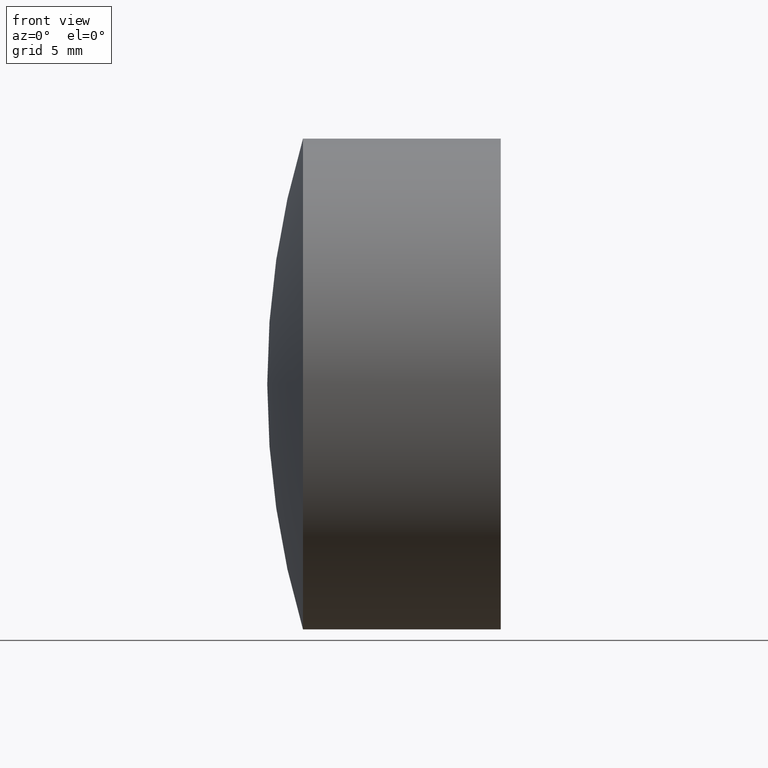
[diagram: clean part render]
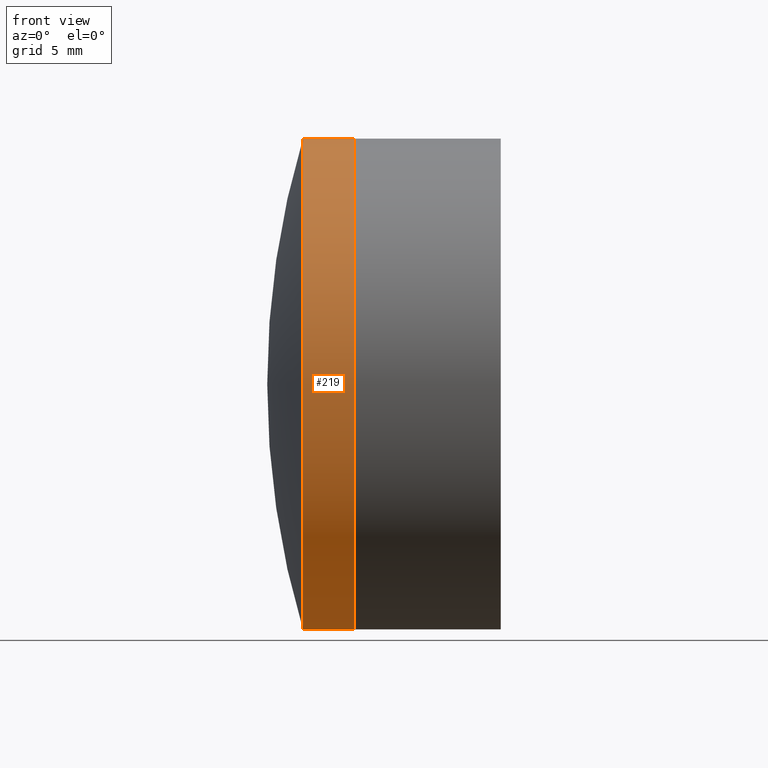
[diagram: same view with one face highlighted and labeled with its STEP entity id]
A machine part, front view. The second image highlights one B-rep face of the part: STEP entity #219.
In plain terms, the highlighted cylindrical surface (partial cylindrical patch) has radius 12.7 mm, axis along (-1, -0, -0).
Its self-contained STEP definition (entity closure, byte-faithful):
#13 = DIRECTION ( 'NONE',  ( -1.000000000000000000, -0.0000000000000000000, -0.0000000000000000000 ) ) ;
#23 = CARTESIAN_POINT ( 'NONE',  ( 313.5157627605192400, -1.555301434917138800E-015, 12.70000000000000600 ) ) ;
#25 = EDGE_CURVE ( 'NONE', #211, #70, #344, .T. ) ;
#26 = CIRCLE ( 'NONE', #294, 12.70000000000000600 ) ;
#27 = ORIENTED_EDGE ( 'NONE', *, *, #183, .T. ) ;
#28 = CARTESIAN_POINT ( 'NONE',  ( 124.5233095260452400, 0.0000000000000000000, 12.70000000000000600 ) ) ;
#35 = DIRECTION ( 'NONE',  ( -1.000000000000000000, -0.0000000000000000000, -0.0000000000000000000 ) ) ;
#64 = VERTEX_POINT ( 'NONE', #286 ) ;
#65 = DIRECTION ( 'NONE',  ( 0.0000000000000000000, 0.0000000000000000000, 1.000000000000000000 ) ) ;
#66 = CARTESIAN_POINT ( 'NONE',  ( 316.1869586626397700, 0.0000000000000000000, 12.70000000000000600 ) ) ;
#68 = DIRECTION ( 'NONE',  ( -1.000000000000000000, -0.0000000000000000000, -0.0000000000000000000 ) ) ;
#70 = VERTEX_POINT ( 'NONE', #23 ) ;
#75 = VERTEX_POINT ( 'NONE', #152 ) ;
#78 = EDGE_CURVE ( 'NONE', #75, #70, #26, .T. ) ;
#93 = ORIENTED_EDGE ( 'NONE', *, *, #25, .T. ) ;
#112 = DIRECTION ( 'NONE',  ( 0.0000000000000000000, 0.0000000000000000000, 1.000000000000000000 ) ) ;
#125 = ORIENTED_EDGE ( 'NONE', *, *, #78, .F. ) ;
#152 = CARTESIAN_POINT ( 'NONE',  ( 313.5157627605192400, 0.0000000000000000000, -12.69999999999999900 ) ) ;
#161 = ORIENTED_EDGE ( 'NONE', *, *, #233, .F. ) ;
#164 = CARTESIAN_POINT ( 'NONE',  ( 313.5157627605192400, 0.0000000000000000000, 0.0000000000000000000 ) ) ;
#166 = CARTESIAN_POINT ( 'NONE',  ( 316.1869586626397700, 0.0000000000000000000, 0.0000000000000000000 ) ) ;
#182 = DIRECTION ( 'NONE',  ( -1.000000000000000000, -0.0000000000000000000, -0.0000000000000000000 ) ) ;
#183 = EDGE_CURVE ( 'NONE', #64, #211, #205, .T. ) ;
#191 = DIRECTION ( 'NONE',  ( 0.0000000000000000000, 0.0000000000000000000, 1.000000000000000000 ) ) ;
#205 = CIRCLE ( 'NONE', #283, 12.70000000000000600 ) ;
#211 = VERTEX_POINT ( 'NONE', #66 ) ;
#218 = CARTESIAN_POINT ( 'NONE',  ( 124.5233095260452400, 0.0000000000000000000, 0.0000000000000000000 ) ) ;
#219 = ADVANCED_FACE ( 'NONE', ( #270 ), #314, .T. ) ;
#233 = EDGE_CURVE ( 'NONE', #64, #75, #260, .T. ) ;
#247 = DIRECTION ( 'NONE',  ( -1.000000000000000000, -0.0000000000000000000, -0.0000000000000000000 ) ) ;
#248 = CARTESIAN_POINT ( 'NONE',  ( 124.5233095260452400, 1.555301434917139200E-015, -12.70000000000000600 ) ) ;
#260 = LINE ( 'NONE', #248, #305 ) ;
#270 = FACE_OUTER_BOUND ( 'NONE', #275, .T. ) ;
#275 = EDGE_LOOP ( 'NONE', ( #161, #27, #93, #125 ) ) ;
#277 = AXIS2_PLACEMENT_3D ( 'NONE', #218, #247, #112 ) ;
#283 = AXIS2_PLACEMENT_3D ( 'NONE', #166, #13, #191 ) ;
#286 = CARTESIAN_POINT ( 'NONE',  ( 316.1869586626397700, 1.555301434917139200E-015, -12.70000000000000600 ) ) ;
#294 = AXIS2_PLACEMENT_3D ( 'NONE', #164, #35, #65 ) ;
#305 = VECTOR ( 'NONE', #68, 1000.000000000000000 ) ;
#314 = CYLINDRICAL_SURFACE ( 'NONE', #277, 12.70000000000000600 ) ;
#340 = VECTOR ( 'NONE', #182, 1000.000000000000000 ) ;
#344 = LINE ( 'NONE', #28, #340 ) ;